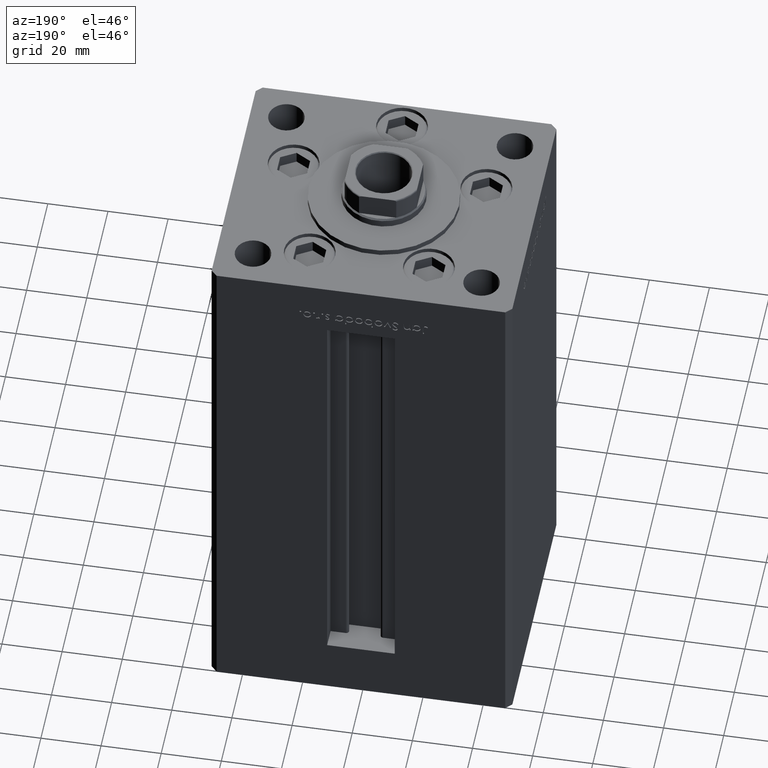
[diagram: clean part render]
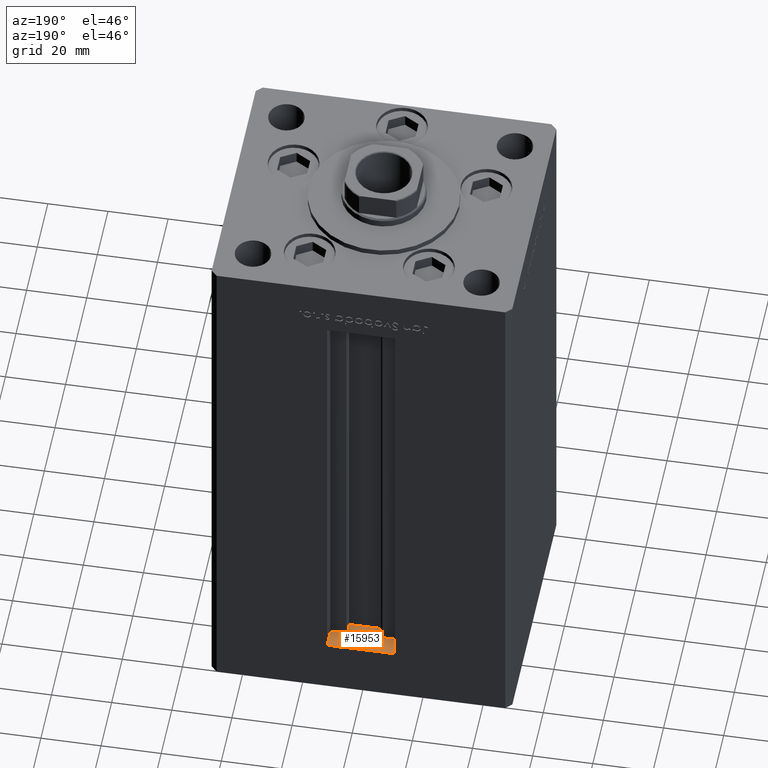
[diagram: same view with one face highlighted and labeled with its STEP entity id]
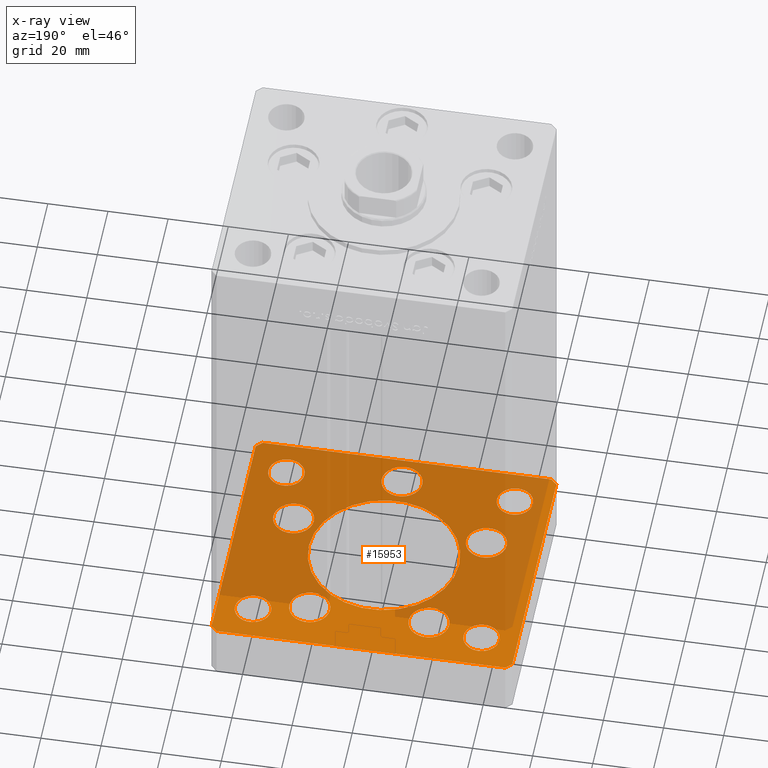
[diagram: x-ray of the same camera — body ghosted, the highlighted face saturated]
A machine part, auxiliary view. The second image highlights one B-rep face of the part: STEP entity #15953.
The next image is the same camera in x-ray: the body ghosted, the highlighted face saturated — about 72% of this face is hidden behind the body in this view.
In plain terms, the highlighted planar face has unit normal (0, 0, -1).
Its self-contained STEP definition (entity closure, byte-faithful):
#76 = CARTESIAN_POINT ( 'NONE',  ( 47.99999999999999289, -43.50000000000001421, -19.00000000000000000 ) ) ;
#161 = ORIENTED_EDGE ( 'NONE', *, *, #24506, .F. ) ;
#348 = DIRECTION ( 'NONE',  ( 0.000000000000000000, 0.000000000000000000, 1.000000000000000000 ) ) ;
#509 = DIRECTION ( 'NONE',  ( 1.000000000000000000, 0.000000000000000000, 0.000000000000000000 ) ) ;
#809 = VECTOR ( 'NONE', #24184, 1000.000000000000000 ) ;
#823 = DIRECTION ( 'NONE',  ( 0.000000000000000000, -0.000000000000000000, -1.000000000000000000 ) ) ;
#1133 = VERTEX_POINT ( 'NONE', #10703 ) ;
#1262 = EDGE_CURVE ( 'NONE', #6051, #44714, #25545, .T. ) ;
#1545 = CIRCLE ( 'NONE', #31063, 6.749999999999999112 ) ;
#1857 = DIRECTION ( 'NONE',  ( -0.7071067811865474617, 0.7071067811865474617, 0.000000000000000000 ) ) ;
#1991 = DIRECTION ( 'NONE',  ( 1.000000000000000000, 0.000000000000000000, 0.000000000000000000 ) ) ;
#2356 = ORIENTED_EDGE ( 'NONE', *, *, #21425, .F. ) ;
#2868 = ORIENTED_EDGE ( 'NONE', *, *, #34232, .F. ) ;
#2904 = CARTESIAN_POINT ( 'NONE',  ( -32.05550741379015278, -11.33333333333333925, -19.00000000000000000 ) ) ;
#3185 = EDGE_CURVE ( 'NONE', #45004, #10312, #13813, .T. ) ;
#3186 = EDGE_CURVE ( 'NONE', #48331, #31726, #6176, .T. ) ;
#3381 = CARTESIAN_POINT ( 'NONE',  ( 32.00000000000000000, -31.49999999999999289, -19.00000000000000000 ) ) ;
#3434 = DIRECTION ( 'NONE',  ( 0.000000000000000000, 0.000000000000000000, 1.000000000000000000 ) ) ;
#3599 = AXIS2_PLACEMENT_3D ( 'NONE', #36514, #348, #26484 ) ;
#4141 = CARTESIAN_POINT ( 'NONE',  ( 0.000000000000000000, 0.000000000000000000, -19.00000000000000000 ) ) ;
#4343 = CIRCLE ( 'NONE', #49851, 6.749999999999999112 ) ;
#5046 = VERTEX_POINT ( 'NONE', #12082 ) ;
#5224 = CARTESIAN_POINT ( 'NONE',  ( -13.07068048781373903, 27.62499999999999645, -19.00000000000000000 ) ) ;
#5808 = ORIENTED_EDGE ( 'NONE', *, *, #30194, .F. ) ;
#5958 = FACE_BOUND ( 'NONE', #19536, .T. ) ;
#6051 = VERTEX_POINT ( 'NONE', #29287 ) ;
#6116 = ORIENTED_EDGE ( 'NONE', *, *, #25066, .F. ) ;
#6176 = CIRCLE ( 'NONE', #30641, 6.749999999999999112 ) ;
#6217 = FACE_BOUND ( 'NONE', #32682, .T. ) ;
#6382 = EDGE_LOOP ( 'NONE', ( #43190, #49054 ) ) ;
#6539 = ORIENTED_EDGE ( 'NONE', *, *, #3186, .F. ) ;
#6598 = CIRCLE ( 'NONE', #11679, 6.749999999999999112 ) ;
#7042 = CARTESIAN_POINT ( 'NONE',  ( 49.99999999999992184, 41.49999999999998579, -19.00000000000000000 ) ) ;
#7046 = EDGE_CURVE ( 'NONE', #40644, #17147, #32425, .T. ) ;
#7602 = VERTEX_POINT ( 'NONE', #46183 ) ;
#7980 = AXIS2_PLACEMENT_3D ( 'NONE', #4141, #29230, #9171 ) ;
#8307 = EDGE_CURVE ( 'NONE', #36689, #1133, #48317, .T. ) ;
#8438 = LINE ( 'NONE', #20580, #32759 ) ;
#9105 = CARTESIAN_POINT ( 'NONE',  ( 25.30550741379015278, -11.33333333333333037, -19.00000000000000000 ) ) ;
#9171 = DIRECTION ( 'NONE',  ( 1.000000000000000000, 0.000000000000000000, 0.000000000000000000 ) ) ;
#9389 = VERTEX_POINT ( 'NONE', #29172 ) ;
#9393 = DIRECTION ( 'NONE',  ( 0.000000000000000000, -0.000000000000000000, -1.000000000000000000 ) ) ;
#9602 = ORIENTED_EDGE ( 'NONE', *, *, #8307, .F. ) ;
#9652 = CARTESIAN_POINT ( 'NONE',  ( -32.05550741379015278, -11.33333333333333925, -19.00000000000000000 ) ) ;
#9837 = AXIS2_PLACEMENT_3D ( 'NONE', #18368, #10455, #1991 ) ;
#9846 = LINE ( 'NONE', #13563, #40244 ) ;
#10225 = DIRECTION ( 'NONE',  ( 0.000000000000000000, -0.000000000000000000, -1.000000000000000000 ) ) ;
#10312 = VERTEX_POINT ( 'NONE', #15121 ) ;
#10326 = CARTESIAN_POINT ( 'NONE',  ( 49.99999999999992184, 41.49999999999998579, -19.00000000000000000 ) ) ;
#10455 = DIRECTION ( 'NONE',  ( -0.000000000000000000, 0.000000000000000000, 1.000000000000000000 ) ) ;
#10631 = VERTEX_POINT ( 'NONE', #5224 ) ;
#10702 = ORIENTED_EDGE ( 'NONE', *, *, #27755, .F. ) ;
#10703 = CARTESIAN_POINT ( 'NONE',  ( -48.00000000000000711, 43.49999999999996447, -19.00000000000000000 ) ) ;
#10809 = AXIS2_PLACEMENT_3D ( 'NONE', #43502, #38260, #50381 ) ;
#10856 = DIRECTION ( 'NONE',  ( -0.000000000000000000, -0.000000000000000000, -1.000000000000000000 ) ) ;
#11047 = ORIENTED_EDGE ( 'NONE', *, *, #3185, .F. ) ;
#11053 = CIRCLE ( 'NONE', #51474, 6.749999999999999112 ) ;
#11431 = CARTESIAN_POINT ( 'NONE',  ( 32.05550741379015278, -11.33333333333333037, -19.00000000000000000 ) ) ;
#11679 = AXIS2_PLACEMENT_3D ( 'NONE', #44428, #48638, #36278 ) ;
#12082 = CARTESIAN_POINT ( 'NONE',  ( -32.00000000000000000, 31.50000000000000000, -19.00000000000000000 ) ) ;
#12513 = DIRECTION ( 'NONE',  ( 0.7071067811865463515, 0.7071067811865487940, 0.000000000000000000 ) ) ;
#12624 = AXIS2_PLACEMENT_3D ( 'NONE', #45241, #25231, #12839 ) ;
#12787 = AXIS2_PLACEMENT_3D ( 'NONE', #9652, #37351, #21522 ) ;
#12829 = CIRCLE ( 'NONE', #24607, 6.749999999999999112 ) ;
#12839 = DIRECTION ( 'NONE',  ( -1.000000000000000000, 0.000000000000000000, 0.000000000000000000 ) ) ;
#12924 = DIRECTION ( 'NONE',  ( -0.7071067811865463515, -0.7071067811865487940, 0.000000000000000000 ) ) ;
#13271 = CARTESIAN_POINT ( 'NONE',  ( -37.99999999999999289, -31.50000000000000000, -19.00000000000000000 ) ) ;
#13310 = CARTESIAN_POINT ( 'NONE',  ( -47.99999999999999289, -43.50000000000001421, -19.00000000000000000 ) ) ;
#13421 = AXIS2_PLACEMENT_3D ( 'NONE', #27934, #47671, #40539 ) ;
#13563 = CARTESIAN_POINT ( 'NONE',  ( -50.00000000000000000, -41.50000000000000000, -19.00000000000000000 ) ) ;
#13639 = ORIENTED_EDGE ( 'NONE', *, *, #28037, .F. ) ;
#13813 = CIRCLE ( 'NONE', #43220, 6.000000000000005329 ) ;
#14088 = AXIS2_PLACEMENT_3D ( 'NONE', #38830, #42523, #50434 ) ;
#14543 = EDGE_CURVE ( 'NONE', #17147, #40644, #40910, .T. ) ;
#14821 = CARTESIAN_POINT ( 'NONE',  ( 38.00000000000000000, 31.49999999999999289, -19.00000000000000000 ) ) ;
#15121 = CARTESIAN_POINT ( 'NONE',  ( -44.00000000000000000, -31.50000000000000000, -19.00000000000000000 ) ) ;
#15126 = DIRECTION ( 'NONE',  ( 0.000000000000000000, -0.000000000000000000, -1.000000000000000000 ) ) ;
#15682 = AXIS2_PLACEMENT_3D ( 'NONE', #18139, #10225, #25803 ) ;
#15953 = ADVANCED_FACE ( 'NONE', ( #42095, #5958, #34973, #51038, #34714, #46561, #22584, #38143, #50261, #6217, #42357 ), #46814, .F. ) ;
#16437 = EDGE_CURVE ( 'NONE', #35970, #47710, #30839, .T. ) ;
#17147 = VERTEX_POINT ( 'NONE', #24353 ) ;
#17429 = ORIENTED_EDGE ( 'NONE', *, *, #49238, .F. ) ;
#17464 = LINE ( 'NONE', #10326, #17505 ) ;
#17505 = VECTOR ( 'NONE', #1857, 1000.000000000000114 ) ;
#17557 = AXIS2_PLACEMENT_3D ( 'NONE', #30431, #19064, #43570 ) ;
#17604 = ORIENTED_EDGE ( 'NONE', *, *, #22047, .T. ) ;
#18139 = CARTESIAN_POINT ( 'NONE',  ( 0.000000000000000000, 0.000000000000000000, -19.00000000000000000 ) ) ;
#18320 = CARTESIAN_POINT ( 'NONE',  ( 13.07068048781373015, 27.62500000000000000, -19.00000000000000000 ) ) ;
#18368 = CARTESIAN_POINT ( 'NONE',  ( 0.000000000000000000, 0.000000000000000000, -19.00000000000000000 ) ) ;
#19025 = DIRECTION ( 'NONE',  ( 0.000000000000000000, -0.000000000000000000, -1.000000000000000000 ) ) ;
#19064 = DIRECTION ( 'NONE',  ( 0.000000000000000000, 0.000000000000000000, 1.000000000000000000 ) ) ;
#19189 = CIRCLE ( 'NONE', #34339, 6.749999999999999112 ) ;
#19536 = EDGE_LOOP ( 'NONE', ( #29267, #6539 ) ) ;
#19659 = ORIENTED_EDGE ( 'NONE', *, *, #34036, .F. ) ;
#19971 = CIRCLE ( 'NONE', #14088, 6.749999999999999112 ) ;
#20580 = CARTESIAN_POINT ( 'NONE',  ( -47.99999999999999289, -43.50000000000001421, -19.00000000000000000 ) ) ;
#20625 = DIRECTION ( 'NONE',  ( 1.000000000000000000, 0.000000000000000000, 0.000000000000000000 ) ) ;
#20744 = VERTEX_POINT ( 'NONE', #31132 ) ;
#20864 = CARTESIAN_POINT ( 'NONE',  ( 47.99999999999990763, 43.50000000000000000, -19.00000000000000000 ) ) ;
#20927 = VERTEX_POINT ( 'NONE', #25548 ) ;
#20928 = DIRECTION ( 'NONE',  ( 0.7071067811865474617, -0.7071067811865474617, 0.000000000000000000 ) ) ;
#20945 = CARTESIAN_POINT ( 'NONE',  ( -19.82068048781373903, 27.62499999999999645, -19.00000000000000000 ) ) ;
#21096 = ORIENTED_EDGE ( 'NONE', *, *, #26206, .F. ) ;
#21265 = CARTESIAN_POINT ( 'NONE',  ( 19.82068048781373193, 27.62500000000000000, -19.00000000000000000 ) ) ;
#21425 = EDGE_CURVE ( 'NONE', #45714, #35970, #48867, .T. ) ;
#21522 = DIRECTION ( 'NONE',  ( 1.000000000000000000, 0.000000000000000000, 0.000000000000000000 ) ) ;
#21617 = VECTOR ( 'NONE', #42942, 1000.000000000000000 ) ;
#21656 = EDGE_CURVE ( 'NONE', #5046, #44275, #26822, .T. ) ;
#21833 = AXIS2_PLACEMENT_3D ( 'NONE', #33442, #28965, #25525 ) ;
#22047 = EDGE_CURVE ( 'NONE', #44275, #5046, #33561, .T. ) ;
#22584 = FACE_BOUND ( 'NONE', #38478, .T. ) ;
#22596 = VERTEX_POINT ( 'NONE', #13310 ) ;
#22825 = EDGE_LOOP ( 'NONE', ( #11047, #161 ) ) ;
#24184 = DIRECTION ( 'NONE',  ( 8.360113137237628665E-17, -1.000000000000000000, 0.000000000000000000 ) ) ;
#24327 = CARTESIAN_POINT ( 'NONE',  ( 4.163799117101000559E-15, -34.00000000000000000, -19.00000000000000000 ) ) ;
#24353 = CARTESIAN_POINT ( 'NONE',  ( -25.00000000000000000, 3.061616997868382254E-15, -19.00000000000000000 ) ) ;
#24506 = EDGE_CURVE ( 'NONE', #10312, #45004, #25201, .T. ) ;
#24568 = CIRCLE ( 'NONE', #12787, 6.749999999999999112 ) ;
#24607 = AXIS2_PLACEMENT_3D ( 'NONE', #11431, #15126, #35685 ) ;
#24634 = EDGE_CURVE ( 'NONE', #44714, #6051, #41215, .T. ) ;
#24997 = EDGE_CURVE ( 'NONE', #27086, #41737, #36144, .T. ) ;
#25044 = CARTESIAN_POINT ( 'NONE',  ( -48.00000000000000711, 43.49999999999996447, -19.00000000000000000 ) ) ;
#25066 = EDGE_CURVE ( 'NONE', #20744, #35010, #49605, .T. ) ;
#25201 = CIRCLE ( 'NONE', #50482, 6.000000000000005329 ) ;
#25231 = DIRECTION ( 'NONE',  ( -0.000000000000000000, -0.000000000000000000, -1.000000000000000000 ) ) ;
#25240 = CARTESIAN_POINT ( 'NONE',  ( 44.00000000000000000, -31.49999999999999289, -19.00000000000000000 ) ) ;
#25313 = CARTESIAN_POINT ( 'NONE',  ( -50.00000000000000711, 41.49999999999995026, -19.00000000000000000 ) ) ;
#25425 = VERTEX_POINT ( 'NONE', #9105 ) ;
#25525 = DIRECTION ( 'NONE',  ( 1.000000000000000000, 0.000000000000000000, 0.000000000000000000 ) ) ;
#25545 = CIRCLE ( 'NONE', #3599, 5.999999999999998224 ) ;
#25548 = CARTESIAN_POINT ( 'NONE',  ( 26.57068048781372838, 27.62500000000000000, -19.00000000000000000 ) ) ;
#25740 = VECTOR ( 'NONE', #47804, 1000.000000000000000 ) ;
#25803 = DIRECTION ( 'NONE',  ( 1.000000000000000000, 0.000000000000000000, 0.000000000000000000 ) ) ;
#25931 = EDGE_LOOP ( 'NONE', ( #35614, #36887, #13639, #9602, #39809, #39466, #2356, #2868 ) ) ;
#26138 = EDGE_CURVE ( 'NONE', #28159, #9389, #31333, .T. ) ;
#26187 = DIRECTION ( 'NONE',  ( -0.000000000000000000, -0.000000000000000000, -1.000000000000000000 ) ) ;
#26206 = EDGE_CURVE ( 'NONE', #41737, #27086, #37049, .T. ) ;
#26484 = DIRECTION ( 'NONE',  ( 1.000000000000000000, 0.000000000000000000, 0.000000000000000000 ) ) ;
#26822 = CIRCLE ( 'NONE', #17557, 5.999999999999998224 ) ;
#26886 = CARTESIAN_POINT ( 'NONE',  ( 50.00000000000000000, -41.49999999999999289, -19.00000000000000000 ) ) ;
#27086 = VERTEX_POINT ( 'NONE', #25240 ) ;
#27116 = CARTESIAN_POINT ( 'NONE',  ( -50.00000000000000711, 41.49999999999995026, -19.00000000000000000 ) ) ;
#27372 = CARTESIAN_POINT ( 'NONE',  ( 50.00000000000000000, -41.49999999999999289, -19.00000000000000000 ) ) ;
#27732 = ORIENTED_EDGE ( 'NONE', *, *, #33768, .F. ) ;
#27745 = DIRECTION ( 'NONE',  ( 0.000000000000000000, -0.000000000000000000, -1.000000000000000000 ) ) ;
#27755 = EDGE_CURVE ( 'NONE', #35010, #20744, #11053, .T. ) ;
#27934 = CARTESIAN_POINT ( 'NONE',  ( 38.00000000000000000, -31.49999999999999289, -19.00000000000000000 ) ) ;
#28037 = EDGE_CURVE ( 'NONE', #1133, #28159, #36646, .T. ) ;
#28159 = VERTEX_POINT ( 'NONE', #25313 ) ;
#28774 = CARTESIAN_POINT ( 'NONE',  ( 25.00000000000000000, 0.000000000000000000, -19.00000000000000000 ) ) ;
#28965 = DIRECTION ( 'NONE',  ( 0.000000000000000000, -0.000000000000000000, -1.000000000000000000 ) ) ;
#29172 = CARTESIAN_POINT ( 'NONE',  ( -50.00000000000000000, -41.50000000000000000, -19.00000000000000000 ) ) ;
#29230 = DIRECTION ( 'NONE',  ( 0.000000000000000000, -0.000000000000000000, -1.000000000000000000 ) ) ;
#29267 = ORIENTED_EDGE ( 'NONE', *, *, #47901, .F. ) ;
#29287 = CARTESIAN_POINT ( 'NONE',  ( 32.00000000000000000, 31.49999999999999289, -19.00000000000000000 ) ) ;
#29891 = EDGE_LOOP ( 'NONE', ( #10702, #6116 ) ) ;
#30194 = EDGE_CURVE ( 'NONE', #7602, #10631, #19971, .T. ) ;
#30403 = DIRECTION ( 'NONE',  ( 1.000000000000000000, 0.000000000000000000, 0.000000000000000000 ) ) ;
#30431 = CARTESIAN_POINT ( 'NONE',  ( -38.00000000000000000, 31.50000000000000000, -19.00000000000000000 ) ) ;
#30641 = AXIS2_PLACEMENT_3D ( 'NONE', #2904, #19025, #35118 ) ;
#30839 = LINE ( 'NONE', #26886, #21617 ) ;
#31014 = EDGE_CURVE ( 'NONE', #20927, #40115, #19189, .T. ) ;
#31063 = AXIS2_PLACEMENT_3D ( 'NONE', #35891, #27745, #44051 ) ;
#31132 = CARTESIAN_POINT ( 'NONE',  ( -6.749999999999994671, -34.00000000000000000, -19.00000000000000000 ) ) ;
#31172 = CARTESIAN_POINT ( 'NONE',  ( -37.99999999999999289, -31.50000000000000000, -19.00000000000000000 ) ) ;
#31333 = LINE ( 'NONE', #27116, #809 ) ;
#31726 = VERTEX_POINT ( 'NONE', #36453 ) ;
#31803 = EDGE_CURVE ( 'NONE', #47710, #36689, #17464, .T. ) ;
#32425 = CIRCLE ( 'NONE', #7980, 25.00000000000000000 ) ;
#32682 = EDGE_LOOP ( 'NONE', ( #39940, #21096 ) ) ;
#32759 = VECTOR ( 'NONE', #509, 1000.000000000000000 ) ;
#32924 = CARTESIAN_POINT ( 'NONE',  ( 38.80550741379015278, -11.33333333333333037, -19.00000000000000000 ) ) ;
#33442 = CARTESIAN_POINT ( 'NONE',  ( 4.163799117101000559E-15, -34.00000000000000000, -19.00000000000000000 ) ) ;
#33464 = VERTEX_POINT ( 'NONE', #32924 ) ;
#33561 = CIRCLE ( 'NONE', #10809, 5.999999999999998224 ) ;
#33768 = EDGE_CURVE ( 'NONE', #25425, #33464, #6598, .T. ) ;
#34036 = EDGE_CURVE ( 'NONE', #40115, #20927, #1545, .T. ) ;
#34232 = EDGE_CURVE ( 'NONE', #22596, #45714, #8438, .T. ) ;
#34339 = AXIS2_PLACEMENT_3D ( 'NONE', #21265, #9393, #49461 ) ;
#34714 = FACE_BOUND ( 'NONE', #46153, .T. ) ;
#34973 = FACE_BOUND ( 'NONE', #29891, .T. ) ;
#35010 = VERTEX_POINT ( 'NONE', #43151 ) ;
#35085 = EDGE_LOOP ( 'NONE', ( #38437, #17604 ) ) ;
#35118 = DIRECTION ( 'NONE',  ( 1.000000000000000000, 0.000000000000000000, 0.000000000000000000 ) ) ;
#35188 = CARTESIAN_POINT ( 'NONE',  ( 47.99999999999990763, 43.50000000000000000, -19.00000000000000000 ) ) ;
#35614 = ORIENTED_EDGE ( 'NONE', *, *, #36414, .F. ) ;
#35685 = DIRECTION ( 'NONE',  ( 1.000000000000000000, 0.000000000000000000, 0.000000000000000000 ) ) ;
#35769 = CARTESIAN_POINT ( 'NONE',  ( -31.99999999999998579, -31.50000000000000000, -19.00000000000000000 ) ) ;
#35891 = CARTESIAN_POINT ( 'NONE',  ( 19.82068048781373193, 27.62500000000000000, -19.00000000000000000 ) ) ;
#35970 = VERTEX_POINT ( 'NONE', #27372 ) ;
#35996 = DIRECTION ( 'NONE',  ( 1.000000000000000000, 0.000000000000000000, 0.000000000000000000 ) ) ;
#36144 = CIRCLE ( 'NONE', #13421, 5.999999999999998224 ) ;
#36278 = DIRECTION ( 'NONE',  ( 1.000000000000000000, 0.000000000000000000, 0.000000000000000000 ) ) ;
#36414 = EDGE_CURVE ( 'NONE', #9389, #22596, #9846, .T. ) ;
#36453 = CARTESIAN_POINT ( 'NONE',  ( -25.30550741379015278, -11.33333333333333925, -19.00000000000000000 ) ) ;
#36514 = CARTESIAN_POINT ( 'NONE',  ( 38.00000000000000000, 31.49999999999999289, -19.00000000000000000 ) ) ;
#36646 = LINE ( 'NONE', #25044, #49817 ) ;
#36689 = VERTEX_POINT ( 'NONE', #20864 ) ;
#36887 = ORIENTED_EDGE ( 'NONE', *, *, #26138, .F. ) ;
#37039 = DIRECTION ( 'NONE',  ( 0.000000000000000000, -0.000000000000000000, -1.000000000000000000 ) ) ;
#37049 = CIRCLE ( 'NONE', #12624, 5.999999999999998224 ) ;
#37351 = DIRECTION ( 'NONE',  ( 0.000000000000000000, -0.000000000000000000, -1.000000000000000000 ) ) ;
#37420 = ORIENTED_EDGE ( 'NONE', *, *, #1262, .T. ) ;
#38143 = FACE_BOUND ( 'NONE', #35085, .T. ) ;
#38260 = DIRECTION ( 'NONE',  ( 0.000000000000000000, 0.000000000000000000, 1.000000000000000000 ) ) ;
#38437 = ORIENTED_EDGE ( 'NONE', *, *, #21656, .T. ) ;
#38478 = EDGE_LOOP ( 'NONE', ( #46564, #37420 ) ) ;
#38830 = CARTESIAN_POINT ( 'NONE',  ( -19.82068048781373903, 27.62499999999999645, -19.00000000000000000 ) ) ;
#39058 = DIRECTION ( 'NONE',  ( -1.000000000000000000, 0.000000000000000000, 0.000000000000000000 ) ) ;
#39466 = ORIENTED_EDGE ( 'NONE', *, *, #16437, .F. ) ;
#39809 = ORIENTED_EDGE ( 'NONE', *, *, #31803, .F. ) ;
#39940 = ORIENTED_EDGE ( 'NONE', *, *, #24997, .F. ) ;
#40115 = VERTEX_POINT ( 'NONE', #18320 ) ;
#40244 = VECTOR ( 'NONE', #20928, 1000.000000000000114 ) ;
#40539 = DIRECTION ( 'NONE',  ( -1.000000000000000000, 0.000000000000000000, 0.000000000000000000 ) ) ;
#40644 = VERTEX_POINT ( 'NONE', #28774 ) ;
#40910 = CIRCLE ( 'NONE', #15682, 25.00000000000000000 ) ;
#41215 = CIRCLE ( 'NONE', #44547, 5.999999999999998224 ) ;
#41737 = VERTEX_POINT ( 'NONE', #3381 ) ;
#41796 = EDGE_LOOP ( 'NONE', ( #48464, #5808 ) ) ;
#41821 = CARTESIAN_POINT ( 'NONE',  ( 44.00000000000000000, 31.49999999999999289, -19.00000000000000000 ) ) ;
#42095 = FACE_BOUND ( 'NONE', #6382, .T. ) ;
#42357 = FACE_BOUND ( 'NONE', #22825, .T. ) ;
#42523 = DIRECTION ( 'NONE',  ( 0.000000000000000000, -0.000000000000000000, -1.000000000000000000 ) ) ;
#42942 = DIRECTION ( 'NONE',  ( -1.003213576468515193E-15, 1.000000000000000000, 0.000000000000000000 ) ) ;
#43151 = CARTESIAN_POINT ( 'NONE',  ( 6.750000000000003553, -34.00000000000000000, -19.00000000000000000 ) ) ;
#43190 = ORIENTED_EDGE ( 'NONE', *, *, #7046, .F. ) ;
#43220 = AXIS2_PLACEMENT_3D ( 'NONE', #31172, #10856, #39058 ) ;
#43502 = CARTESIAN_POINT ( 'NONE',  ( -38.00000000000000000, 31.50000000000000000, -19.00000000000000000 ) ) ;
#43570 = DIRECTION ( 'NONE',  ( 1.000000000000000000, 0.000000000000000000, 0.000000000000000000 ) ) ;
#44051 = DIRECTION ( 'NONE',  ( 1.000000000000000000, 0.000000000000000000, 0.000000000000000000 ) ) ;
#44084 = CARTESIAN_POINT ( 'NONE',  ( -38.80550741379015278, -11.33333333333333925, -19.00000000000000000 ) ) ;
#44275 = VERTEX_POINT ( 'NONE', #50901 ) ;
#44428 = CARTESIAN_POINT ( 'NONE',  ( 32.05550741379015278, -11.33333333333333037, -19.00000000000000000 ) ) ;
#44547 = AXIS2_PLACEMENT_3D ( 'NONE', #14821, #3434, #30403 ) ;
#44714 = VERTEX_POINT ( 'NONE', #41821 ) ;
#44832 = CARTESIAN_POINT ( 'NONE',  ( 47.99999999999999289, -43.50000000000001421, -19.00000000000000000 ) ) ;
#45004 = VERTEX_POINT ( 'NONE', #35769 ) ;
#45241 = CARTESIAN_POINT ( 'NONE',  ( 38.00000000000000000, -31.49999999999999289, -19.00000000000000000 ) ) ;
#45714 = VERTEX_POINT ( 'NONE', #44832 ) ;
#46153 = EDGE_LOOP ( 'NONE', ( #47696, #19659 ) ) ;
#46182 = VECTOR ( 'NONE', #12513, 1000.000000000000000 ) ;
#46183 = CARTESIAN_POINT ( 'NONE',  ( -26.57068048781373903, 27.62499999999999645, -19.00000000000000000 ) ) ;
#46561 = FACE_BOUND ( 'NONE', #41796, .T. ) ;
#46564 = ORIENTED_EDGE ( 'NONE', *, *, #24634, .T. ) ;
#46814 = PLANE ( 'NONE',  #9837 ) ;
#47671 = DIRECTION ( 'NONE',  ( -0.000000000000000000, -0.000000000000000000, -1.000000000000000000 ) ) ;
#47696 = ORIENTED_EDGE ( 'NONE', *, *, #31014, .F. ) ;
#47710 = VERTEX_POINT ( 'NONE', #7042 ) ;
#47804 = DIRECTION ( 'NONE',  ( -1.000000000000000000, -3.614007241618350743E-16, 0.000000000000000000 ) ) ;
#47901 = EDGE_CURVE ( 'NONE', #31726, #48331, #24568, .T. ) ;
#48317 = LINE ( 'NONE', #35188, #25740 ) ;
#48331 = VERTEX_POINT ( 'NONE', #44084 ) ;
#48464 = ORIENTED_EDGE ( 'NONE', *, *, #49021, .F. ) ;
#48638 = DIRECTION ( 'NONE',  ( 0.000000000000000000, -0.000000000000000000, -1.000000000000000000 ) ) ;
#48867 = LINE ( 'NONE', #76, #46182 ) ;
#49021 = EDGE_CURVE ( 'NONE', #10631, #7602, #4343, .T. ) ;
#49054 = ORIENTED_EDGE ( 'NONE', *, *, #14543, .F. ) ;
#49238 = EDGE_CURVE ( 'NONE', #33464, #25425, #12829, .T. ) ;
#49366 = DIRECTION ( 'NONE',  ( -1.000000000000000000, 0.000000000000000000, 0.000000000000000000 ) ) ;
#49461 = DIRECTION ( 'NONE',  ( 1.000000000000000000, 0.000000000000000000, 0.000000000000000000 ) ) ;
#49605 = CIRCLE ( 'NONE', #21833, 6.749999999999999112 ) ;
#49817 = VECTOR ( 'NONE', #12924, 1000.000000000000000 ) ;
#49851 = AXIS2_PLACEMENT_3D ( 'NONE', #20945, #37039, #35996 ) ;
#50261 = FACE_OUTER_BOUND ( 'NONE', #25931, .T. ) ;
#50381 = DIRECTION ( 'NONE',  ( 1.000000000000000000, 0.000000000000000000, 0.000000000000000000 ) ) ;
#50434 = DIRECTION ( 'NONE',  ( 1.000000000000000000, 0.000000000000000000, 0.000000000000000000 ) ) ;
#50482 = AXIS2_PLACEMENT_3D ( 'NONE', #13271, #26187, #49366 ) ;
#50901 = CARTESIAN_POINT ( 'NONE',  ( -44.00000000000000000, 31.50000000000000000, -19.00000000000000000 ) ) ;
#51038 = FACE_BOUND ( 'NONE', #51375, .T. ) ;
#51375 = EDGE_LOOP ( 'NONE', ( #17429, #27732 ) ) ;
#51474 = AXIS2_PLACEMENT_3D ( 'NONE', #24327, #823, #20625 ) ;